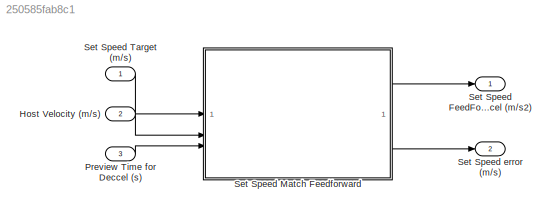
MODEL slx_250585fab8c1
KIND model
CONFIG AbsTol = auto
CONFIG EnableMultiTasking = off
CONFIG FixedStep = 0.05
CONFIG MaxStep = auto
CONFIG MinStep = auto
CONFIG RelTol = 1e-3
CONFIG SampleTimeConstraint = Unconstrained
CONFIG SolverName = FixedStepDiscrete
CONFIG StartTime = 0.0
CONFIG StopTime = 10.0
BLOCK [Inport] Host Velocity (m//s)
  Port = 2
BLOCK [Inport] Preview Time for Deccel (s)
  Port = 3
BLOCK [Outport] Set Speed FeedForward Deccel (m//s2)
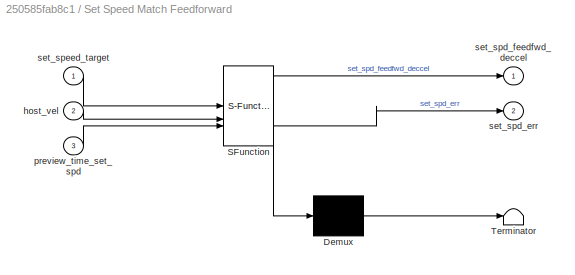
BLOCK [SubSystem] Set Speed Match Feedforward
  ErrorFcn = Stateflow.Translate.translate
  PermitHierarchicalResolution = ExplicitOnly
  SFBlockType = MATLAB Function
  TreatAsAtomicUnit = on
BLOCK [Demux] Set Speed Match Feedforward/ Demux 
  Outputs = 1
BLOCK [S-Function] Set Speed Match Feedforward/ SFunction 
  EnableBusSupport = on
  FunctionName = sf_sfun
  PortCounts = [3 3]
  SFcnIsStateOwnerBlock = off
  SFunctionDeploymentMode = off
  Tag = Stateflow S-Function 5
BLOCK [Terminator] Set Speed Match Feedforward/ Terminator 
BLOCK [Inport] Set Speed Match Feedforward/host_vel
  Port = 2
BLOCK [Inport] Set Speed Match Feedforward/preview_time_set_spd
  Port = 3
BLOCK [Outport] Set Speed Match Feedforward/set_spd_err
  Port = 2
BLOCK [Outport] Set Speed Match Feedforward/set_spd_feedfwd_deccel
BLOCK [Inport] Set Speed Match Feedforward/set_speed_target
BLOCK [Inport] Set Speed Target (m//s)
BLOCK [Outport] Set Speed error (m//s)
  Port = 2
LINE Host Velocity (m//s):1 -> Set Speed Match Feedforward:2
LINE Preview Time for Deccel (s):1 -> Set Speed Match Feedforward:3
LINE Set Speed Match Feedforward:1 -> Set Speed FeedForward Deccel (m//s2):1
LINE Set Speed Match Feedforward:2 -> Set Speed error (m//s):1
LINE Set Speed Target (m//s):1 -> Set Speed Match Feedforward:1
CHART Set Speed Match Feedforward states=1 transitions=1
  STATE_LABEL 'eML_blk_kernel()'
  STATE_LABEL 'SCRIPT:\nfunction [set_spd_feedfwd_deccel, set_spd_err] = fcn(set_speed_target, host_vel, preview_time_set_spd)\n% This function determines the feedforward slowing down effect for host if\n% the vehicle ever exceeds the set speed maximum/driver set speed/speed target set by AIN feature\n% inputs are set_speed_target [m/s] which is speed maximum value; host_vel which is host velocity feedback [m/s]; \n%...<+326ch>'
CHART  states=0 transitions=0
